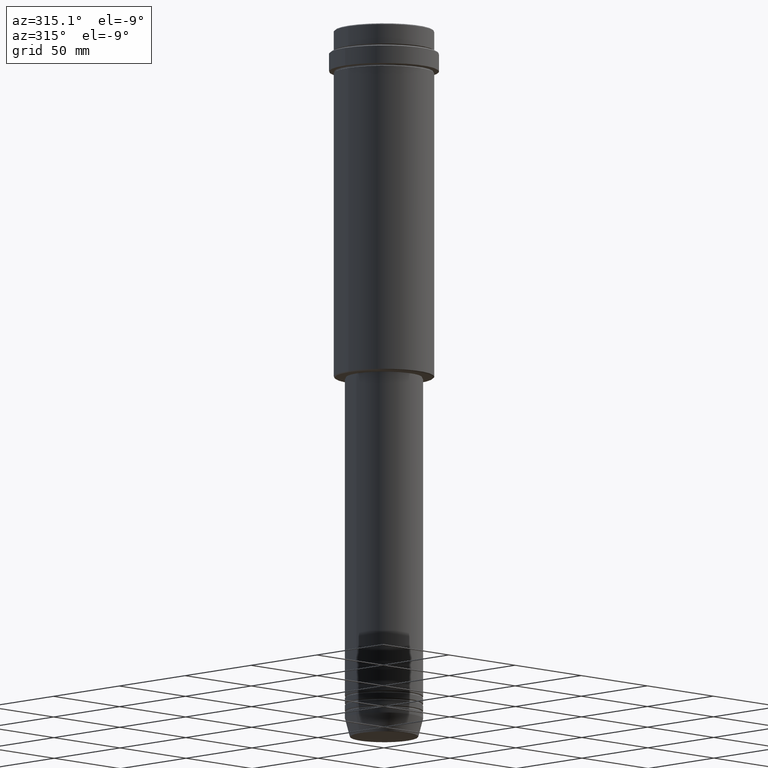
[diagram: clean part render]
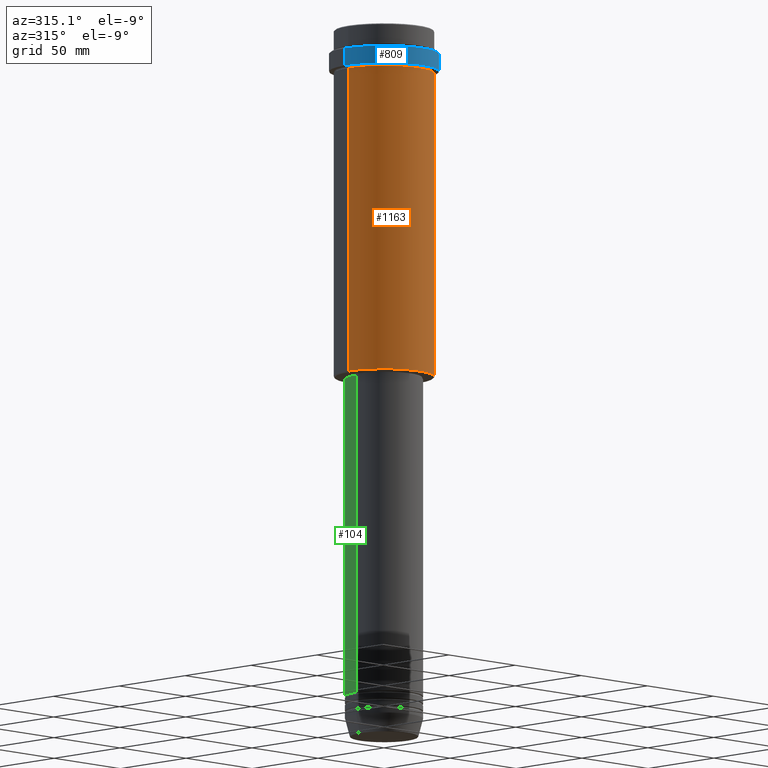
[diagram: same view with three faces highlighted in distinct colors, each labeled with its STEP entity id]
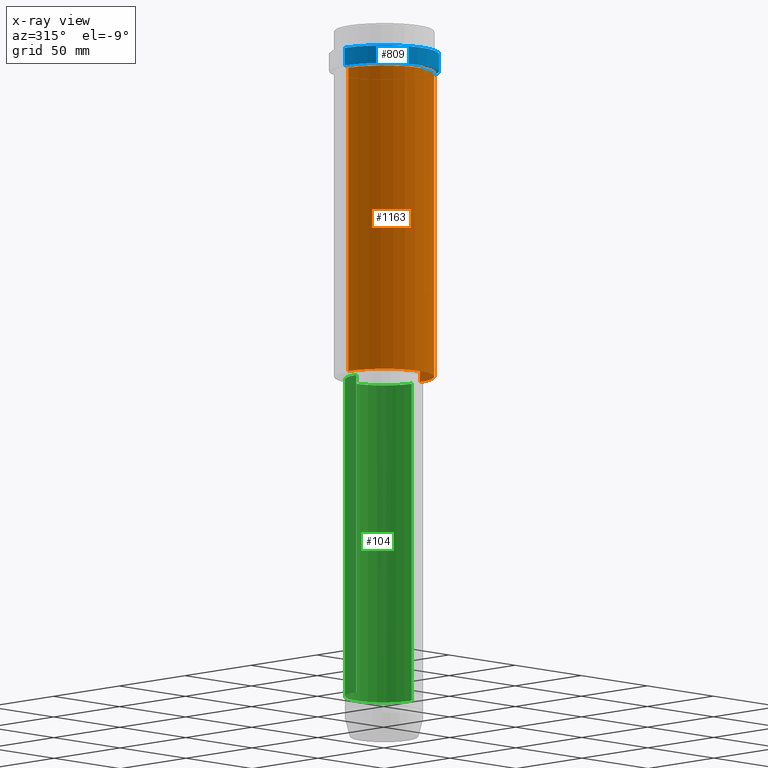
[diagram: x-ray of the same camera — body ghosted, the three highlighted faces saturated]
A machine part, auxiliary view with three faces highlighted in distinct colors.
The next image is the same camera in x-ray (body ghosted, the three faces saturated) — at least one of them is partly hidden behind the body in this view.
Their STEP definitions:

[orange] entity #1163 — the highlighted cylindrical surface (partial cylindrical patch) has radius 27 mm, axis along (-0, -0, 1).
#14 = AXIS2_PLACEMENT_3D ( 'NONE', #205, #644, #1074 ) ;
#22 = EDGE_CURVE ( 'NONE', #1126, #1396, #1321, .T. ) ;
#34 = CIRCLE ( 'NONE', #785, 27.00000000000000355 ) ;
#102 = ORIENTED_EDGE ( 'NONE', *, *, #902, .F. ) ;
#205 = CARTESIAN_POINT ( 'NONE',  ( 0.000000000000000000, 0.000000000000000000, 0.000000000000000000 ) ) ;
#211 = ORIENTED_EDGE ( 'NONE', *, *, #212, .T. ) ;
#212 = EDGE_CURVE ( 'NONE', #1126, #713, #1172, .T. ) ;
#225 = VECTOR ( 'NONE', #900, 1000.000000000000000 ) ;
#236 = LINE ( 'NONE', #793, #1110 ) ;
#329 = CARTESIAN_POINT ( 'NONE',  ( 27.00000000000000355, 0.000000000000000000, -23.00000000000001421 ) ) ;
#333 = DIRECTION ( 'NONE',  ( -0.000000000000000000, -0.000000000000000000, 1.000000000000000000 ) ) ;
#334 = CARTESIAN_POINT ( 'NONE',  ( 0.000000000000000000, 0.000000000000000000, -23.00000000000001421 ) ) ;
#372 = ORIENTED_EDGE ( 'NONE', *, *, #22, .F. ) ;
#417 = CARTESIAN_POINT ( 'NONE',  ( -27.00000000000000355, 3.306546357697854128E-15, -187.5000000000000853 ) ) ;
#420 = DIRECTION ( 'NONE',  ( -1.000000000000000000, 0.000000000000000000, 0.000000000000000000 ) ) ;
#454 = CARTESIAN_POINT ( 'NONE',  ( -27.00000000000000355, 3.306546357697854128E-15, 0.000000000000000000 ) ) ;
#518 = DIRECTION ( 'NONE',  ( 1.000000000000000000, 0.000000000000000000, 0.000000000000000000 ) ) ;
#531 = CARTESIAN_POINT ( 'NONE',  ( 0.000000000000000000, 0.000000000000000000, -187.5000000000000853 ) ) ;
#644 = DIRECTION ( 'NONE',  ( -0.000000000000000000, -0.000000000000000000, 1.000000000000000000 ) ) ;
#659 = CARTESIAN_POINT ( 'NONE',  ( 27.00000000000000355, 0.000000000000000000, -187.5000000000000853 ) ) ;
#713 = VERTEX_POINT ( 'NONE', #659 ) ;
#779 = DIRECTION ( 'NONE',  ( -0.000000000000000000, -0.000000000000000000, 1.000000000000000000 ) ) ;
#785 = AXIS2_PLACEMENT_3D ( 'NONE', #334, #779, #518 ) ;
#793 = CARTESIAN_POINT ( 'NONE',  ( 27.00000000000000355, 0.000000000000000000, 0.000000000000000000 ) ) ;
#900 = DIRECTION ( 'NONE',  ( -0.000000000000000000, -0.000000000000000000, 1.000000000000000000 ) ) ;
#902 = EDGE_CURVE ( 'NONE', #1396, #1043, #34, .T. ) ;
#952 = CYLINDRICAL_SURFACE ( 'NONE', #14, 27.00000000000000355 ) ;
#1043 = VERTEX_POINT ( 'NONE', #329 ) ;
#1046 = EDGE_LOOP ( 'NONE', ( #372, #211, #1285, #102 ) ) ;
#1063 = AXIS2_PLACEMENT_3D ( 'NONE', #531, #333, #420 ) ;
#1074 = DIRECTION ( 'NONE',  ( 1.000000000000000000, 0.000000000000000000, 0.000000000000000000 ) ) ;
#1110 = VECTOR ( 'NONE', #1416, 1000.000000000000000 ) ;
#1126 = VERTEX_POINT ( 'NONE', #417 ) ;
#1163 = ADVANCED_FACE ( 'NONE', ( #1175 ), #952, .T. ) ;
#1172 = CIRCLE ( 'NONE', #1063, 27.00000000000000355 ) ;
#1175 = FACE_OUTER_BOUND ( 'NONE', #1046, .T. ) ;
#1205 = EDGE_CURVE ( 'NONE', #713, #1043, #236, .T. ) ;
#1285 = ORIENTED_EDGE ( 'NONE', *, *, #1205, .T. ) ;
#1321 = LINE ( 'NONE', #454, #225 ) ;
#1347 = CARTESIAN_POINT ( 'NONE',  ( -27.00000000000000355, 3.306546357697854128E-15, -23.00000000000001421 ) ) ;
#1396 = VERTEX_POINT ( 'NONE', #1347 ) ;
#1416 = DIRECTION ( 'NONE',  ( -0.000000000000000000, -0.000000000000000000, 1.000000000000000000 ) ) ;

[blue] entity #809 — the highlighted cylindrical surface (partial cylindrical patch) has radius 29.5 mm, axis along (-0, -0, 1).
#49 = CARTESIAN_POINT ( 'NONE',  ( -29.50000000000000000, 3.612708057484691604E-15, 0.000000000000000000 ) ) ;
#150 = EDGE_CURVE ( 'NONE', #636, #1214, #840, .T. ) ;
#153 = VECTOR ( 'NONE', #493, 1000.000000000000000 ) ;
#230 = CARTESIAN_POINT ( 'NONE',  ( 29.50000000000000000, 0.000000000000000000, -12.50000000000000355 ) ) ;
#288 = DIRECTION ( 'NONE',  ( -0.000000000000000000, -0.000000000000000000, 1.000000000000000000 ) ) ;
#415 = CARTESIAN_POINT ( 'NONE',  ( 29.49999999999999645, 0.000000000000000000, -22.00000000000000711 ) ) ;
#434 = CYLINDRICAL_SURFACE ( 'NONE', #934, 29.50000000000000000 ) ;
#439 = FACE_OUTER_BOUND ( 'NONE', #1011, .T. ) ;
#493 = DIRECTION ( 'NONE',  ( -0.000000000000000000, -0.000000000000000000, 1.000000000000000000 ) ) ;
#503 = CARTESIAN_POINT ( 'NONE',  ( 0.000000000000000000, 0.000000000000000000, -12.50000000000000355 ) ) ;
#530 = CIRCLE ( 'NONE', #1245, 29.49999999999999645 ) ;
#538 = CARTESIAN_POINT ( 'NONE',  ( -29.50000000000000000, 3.612708057484691604E-15, -12.50000000000000355 ) ) ;
#543 = CARTESIAN_POINT ( 'NONE',  ( 0.000000000000000000, 0.000000000000000000, 0.000000000000000000 ) ) ;
#552 = EDGE_CURVE ( 'NONE', #1115, #1165, #1249, .T. ) ;
#562 = DIRECTION ( 'NONE',  ( 1.000000000000000000, 0.000000000000000000, 0.000000000000000000 ) ) ;
#571 = EDGE_CURVE ( 'NONE', #1214, #1165, #595, .T. ) ;
#595 = CIRCLE ( 'NONE', #614, 29.50000000000000000 ) ;
#614 = AXIS2_PLACEMENT_3D ( 'NONE', #503, #727, #1150 ) ;
#636 = VERTEX_POINT ( 'NONE', #415 ) ;
#650 = DIRECTION ( 'NONE',  ( -0.000000000000000000, -0.000000000000000000, 1.000000000000000000 ) ) ;
#727 = DIRECTION ( 'NONE',  ( 0.000000000000000000, 0.000000000000000000, -1.000000000000000000 ) ) ;
#733 = DIRECTION ( 'NONE',  ( 1.000000000000000000, 0.000000000000000000, 0.000000000000000000 ) ) ;
#809 = ADVANCED_FACE ( 'NONE', ( #439 ), #434, .T. ) ;
#840 = LINE ( 'NONE', #1257, #1289 ) ;
#881 = ORIENTED_EDGE ( 'NONE', *, *, #571, .T. ) ;
#923 = DIRECTION ( 'NONE',  ( -0.000000000000000000, -0.000000000000000000, 1.000000000000000000 ) ) ;
#934 = AXIS2_PLACEMENT_3D ( 'NONE', #543, #650, #562 ) ;
#942 = EDGE_CURVE ( 'NONE', #1115, #636, #530, .T. ) ;
#1011 = EDGE_LOOP ( 'NONE', ( #1320, #1312, #1123, #881 ) ) ;
#1045 = CARTESIAN_POINT ( 'NONE',  ( 0.000000000000000000, 0.000000000000000000, -22.00000000000000711 ) ) ;
#1066 = CARTESIAN_POINT ( 'NONE',  ( -29.49999999999999645, 3.612708057484690815E-15, -22.00000000000000711 ) ) ;
#1115 = VERTEX_POINT ( 'NONE', #1066 ) ;
#1123 = ORIENTED_EDGE ( 'NONE', *, *, #150, .T. ) ;
#1150 = DIRECTION ( 'NONE',  ( 1.000000000000000000, 0.000000000000000000, 0.000000000000000000 ) ) ;
#1165 = VERTEX_POINT ( 'NONE', #538 ) ;
#1214 = VERTEX_POINT ( 'NONE', #230 ) ;
#1245 = AXIS2_PLACEMENT_3D ( 'NONE', #1045, #923, #733 ) ;
#1249 = LINE ( 'NONE', #49, #153 ) ;
#1257 = CARTESIAN_POINT ( 'NONE',  ( 29.50000000000000000, 0.000000000000000000, 0.000000000000000000 ) ) ;
#1289 = VECTOR ( 'NONE', #288, 1000.000000000000000 ) ;
#1312 = ORIENTED_EDGE ( 'NONE', *, *, #942, .T. ) ;
#1320 = ORIENTED_EDGE ( 'NONE', *, *, #552, .F. ) ;

[green] entity #104 — the highlighted cylindrical surface (partial cylindrical patch) has radius 21 mm, axis along (-0, -0, 1).
#4 = VERTEX_POINT ( 'NONE', #1238 ) ;
#53 = ORIENTED_EDGE ( 'NONE', *, *, #310, .F. ) ;
#72 = ORIENTED_EDGE ( 'NONE', *, *, #1030, .F. ) ;
#92 = CARTESIAN_POINT ( 'NONE',  ( 21.00000000000000000, 0.000000000000000000, -360.9999999999998863 ) ) ;
#104 = ADVANCED_FACE ( 'NONE', ( #722 ), #408, .T. ) ;
#171 = CARTESIAN_POINT ( 'NONE',  ( 21.00000000000000000, 0.000000000000000000, 0.000000000000000000 ) ) ;
#175 = AXIS2_PLACEMENT_3D ( 'NONE', #484, #856, #1129 ) ;
#293 = AXIS2_PLACEMENT_3D ( 'NONE', #485, #857, #1364 ) ;
#310 = EDGE_CURVE ( 'NONE', #978, #4, #594, .T. ) ;
#336 = ORIENTED_EDGE ( 'NONE', *, *, #450, .T. ) ;
#408 = CYLINDRICAL_SURFACE ( 'NONE', #293, 21.00000000000000000 ) ;
#423 = EDGE_LOOP ( 'NONE', ( #336, #748, #53, #72 ) ) ;
#450 = EDGE_CURVE ( 'NONE', #838, #585, #686, .T. ) ;
#484 = CARTESIAN_POINT ( 'NONE',  ( 0.000000000000000000, 0.000000000000000000, -360.9999999999998863 ) ) ;
#485 = CARTESIAN_POINT ( 'NONE',  ( 0.000000000000000000, 0.000000000000000000, 0.000000000000000000 ) ) ;
#512 = CARTESIAN_POINT ( 'NONE',  ( -21.00000000000000000, 2.571758278209441661E-15, -360.9999999999998863 ) ) ;
#585 = VERTEX_POINT ( 'NONE', #512 ) ;
#594 = CIRCLE ( 'NONE', #781, 21.00000000000000000 ) ;
#651 = DIRECTION ( 'NONE',  ( -0.000000000000000000, -0.000000000000000000, 1.000000000000000000 ) ) ;
#681 = CARTESIAN_POINT ( 'NONE',  ( -21.00000000000000000, 2.571758278209441661E-15, 0.000000000000000000 ) ) ;
#686 = CIRCLE ( 'NONE', #175, 21.00000000000000000 ) ;
#722 = FACE_OUTER_BOUND ( 'NONE', #423, .T. ) ;
#748 = ORIENTED_EDGE ( 'NONE', *, *, #1351, .T. ) ;
#781 = AXIS2_PLACEMENT_3D ( 'NONE', #795, #990, #1218 ) ;
#795 = CARTESIAN_POINT ( 'NONE',  ( 0.000000000000000000, 0.000000000000000000, -188.9999999999999147 ) ) ;
#829 = CARTESIAN_POINT ( 'NONE',  ( 21.00000000000000000, 0.000000000000000000, -188.9999999999999147 ) ) ;
#838 = VERTEX_POINT ( 'NONE', #92 ) ;
#856 = DIRECTION ( 'NONE',  ( -0.000000000000000000, -0.000000000000000000, 1.000000000000000000 ) ) ;
#857 = DIRECTION ( 'NONE',  ( -0.000000000000000000, -0.000000000000000000, 1.000000000000000000 ) ) ;
#938 = VECTOR ( 'NONE', #651, 1000.000000000000000 ) ;
#978 = VERTEX_POINT ( 'NONE', #829 ) ;
#990 = DIRECTION ( 'NONE',  ( -0.000000000000000000, -0.000000000000000000, 1.000000000000000000 ) ) ;
#1030 = EDGE_CURVE ( 'NONE', #838, #978, #1149, .T. ) ;
#1113 = VECTOR ( 'NONE', #1114, 1000.000000000000000 ) ;
#1114 = DIRECTION ( 'NONE',  ( -0.000000000000000000, -0.000000000000000000, 1.000000000000000000 ) ) ;
#1122 = LINE ( 'NONE', #681, #1113 ) ;
#1129 = DIRECTION ( 'NONE',  ( 1.000000000000000000, 0.000000000000000000, 0.000000000000000000 ) ) ;
#1149 = LINE ( 'NONE', #171, #938 ) ;
#1218 = DIRECTION ( 'NONE',  ( 1.000000000000000000, 0.000000000000000000, 0.000000000000000000 ) ) ;
#1238 = CARTESIAN_POINT ( 'NONE',  ( -21.00000000000000000, 2.571758278209441661E-15, -188.9999999999999147 ) ) ;
#1351 = EDGE_CURVE ( 'NONE', #585, #4, #1122, .T. ) ;
#1364 = DIRECTION ( 'NONE',  ( 1.000000000000000000, 0.000000000000000000, 0.000000000000000000 ) ) ;